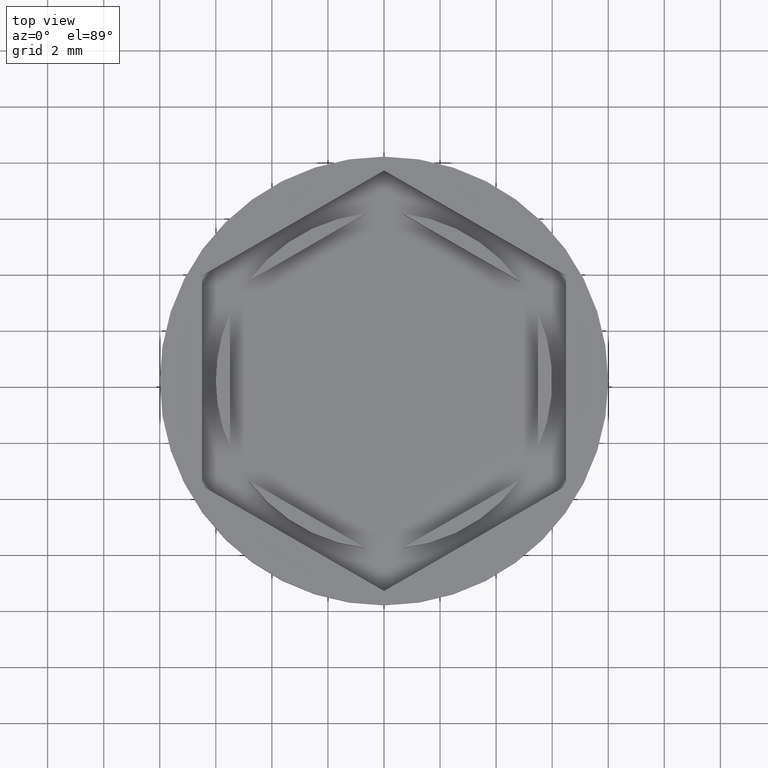
[diagram: clean part render]
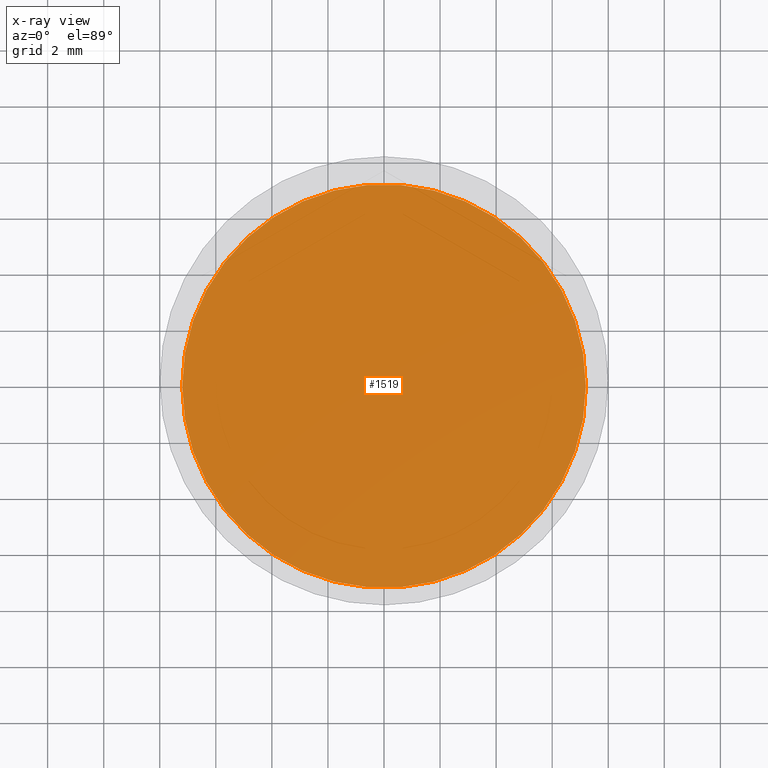
[diagram: x-ray — body ghosted, one internal face saturated and labeled with its STEP entity id]
A machine part, top view, then the same camera in x-ray: the body is ghosted and one INTERNAL B-rep face — a face not visible from any outside direction — is saturated and labeled: STEP entity #1519.
In plain terms, the highlighted planar face has unit normal (0, 0, -1).
Its self-contained STEP definition (entity closure, byte-faithful):
#107 = EDGE_CURVE ( 'NONE', #646, #446, #1331, .T. ) ;
#167 = ORIENTED_EDGE ( 'NONE', *, *, #107, .T. ) ;
#217 = DIRECTION ( 'NONE',  ( -1.000000000000000000, 0.000000000000000000, 0.000000000000000000 ) ) ;
#259 = ORIENTED_EDGE ( 'NONE', *, *, #538, .T. ) ;
#433 = DIRECTION ( 'NONE',  ( -1.000000000000000000, 0.000000000000000000, -0.000000000000000000 ) ) ;
#446 = VERTEX_POINT ( 'NONE', #637 ) ;
#532 = CARTESIAN_POINT ( 'NONE',  ( -7.200000000000001954, 0.000000000000000000, -11.00000000000000000 ) ) ;
#538 = EDGE_CURVE ( 'NONE', #446, #646, #1237, .T. ) ;
#540 = DIRECTION ( 'NONE',  ( -1.000000000000000000, 0.000000000000000000, 0.000000000000000000 ) ) ;
#637 = CARTESIAN_POINT ( 'NONE',  ( 7.200000000000001954, 9.001153973733047589E-16, -11.00000000000000000 ) ) ;
#646 = VERTEX_POINT ( 'NONE', #532 ) ;
#704 = CARTESIAN_POINT ( 'NONE',  ( 0.000000000000000000, 0.000000000000000000, -11.00000000000000000 ) ) ;
#1029 = DIRECTION ( 'NONE',  ( -0.000000000000000000, -0.000000000000000000, 1.000000000000000000 ) ) ;
#1030 = PLANE ( 'NONE',  #1479 ) ;
#1176 = EDGE_LOOP ( 'NONE', ( #167, #259 ) ) ;
#1189 = FACE_OUTER_BOUND ( 'NONE', #1176, .T. ) ;
#1237 = CIRCLE ( 'NONE', #1689, 7.200000000000001954 ) ;
#1329 = DIRECTION ( 'NONE',  ( 0.000000000000000000, 0.000000000000000000, -1.000000000000000000 ) ) ;
#1331 = CIRCLE ( 'NONE', #1982, 7.200000000000001954 ) ;
#1381 = CARTESIAN_POINT ( 'NONE',  ( 0.000000000000000000, 0.000000000000000000, -11.00000000000000000 ) ) ;
#1479 = AXIS2_PLACEMENT_3D ( 'NONE', #704, #1329, #433 ) ;
#1519 = ADVANCED_FACE ( 'NONE', ( #1189 ), #1030, .F. ) ;
#1616 = CARTESIAN_POINT ( 'NONE',  ( 0.000000000000000000, 0.000000000000000000, -11.00000000000000000 ) ) ;
#1689 = AXIS2_PLACEMENT_3D ( 'NONE', #1381, #1751, #217 ) ;
#1751 = DIRECTION ( 'NONE',  ( -0.000000000000000000, -0.000000000000000000, 1.000000000000000000 ) ) ;
#1982 = AXIS2_PLACEMENT_3D ( 'NONE', #1616, #1029, #540 ) ;